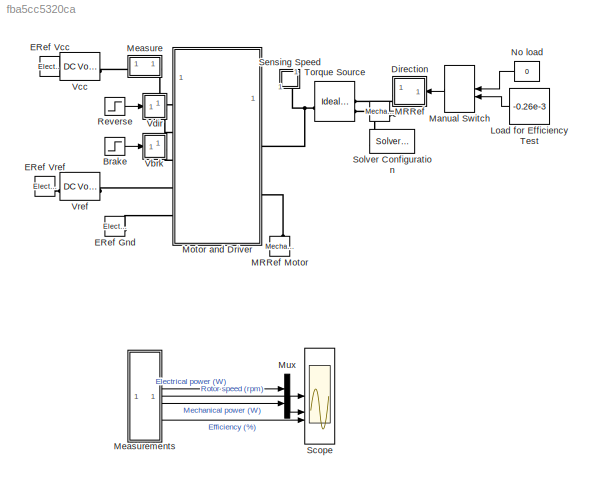
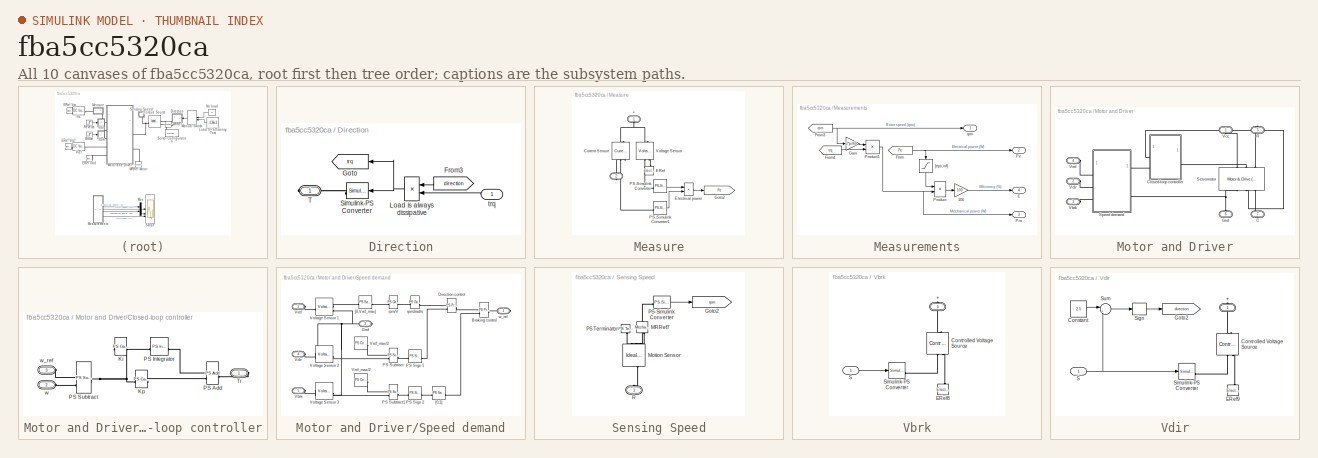
[diagram: thumbnail index - all 10 canvases of the model, root first then tree order]
MODEL slx_fba5cc5320ca
KIND model
CONFIG AbsTol = auto
CONFIG EnableMultiTasking = on
CONFIG FixedStep = 1e-3
CONFIG MaxStep = auto
CONFIG MinStep = auto
CONFIG RelTol = 1e-3
CONFIG SampleTimeConstraint = Unconstrained
CONFIG SolverName = VariableStepAuto
CONFIG StartTime = 0.0
CONFIG StopFcn = ee_addSimlogTimeStamp(bdroot)
CONFIG StopTime = 3
BLOCK [Step] Brake
  After = 5
  SampleTime = 0
  Time = 2
BLOCK [SubSystem] Direction
  NameLocation = top
BLOCK [From] Direction/From3
  GotoTag = direction
  TagVisibility = global
BLOCK [Goto] Direction/Goto
  GotoTag = trq
  NameLocation = top
  TagVisibility = global
BLOCK [Product] Direction/Load is always dissipative
  InputSameDT = on
  OutDataTypeStr = Inherit: Same as first input
  SaturateOnIntegerOverflow = on
BLOCK [Reference] Direction/Simulink-PS Converter  REF=nesl_utility/Simulink-PS
Converter
  NameLocation = top
  SourceBlock = nesl_utility/Simulink-PS\nConverter
  SourceType = Simulink-PS\nConverter
BLOCK [PMIOPort] Direction/T
  Side = Right
BLOCK [Inport] Direction/trq
BLOCK [Reference] ERef Gnd  REF=fl_lib/Electrical/Electrical Elements/Electrical Reference
  SourceBlock = fl_lib/Electrical/Electrical Elements/Electrical Reference
  SourceType = Electrical Reference
BLOCK [Reference] ERef Vcc  REF=fl_lib/Electrical/Electrical Elements/Electrical Reference
  SourceBlock = fl_lib/Electrical/Electrical Elements/Electrical Reference
  SourceType = Electrical Reference
BLOCK [Reference] ERef Vref  REF=fl_lib/Electrical/Electrical Elements/Electrical Reference
  SourceBlock = fl_lib/Electrical/Electrical Elements/Electrical Reference
  SourceType = Electrical Reference
BLOCK [Constant] Load for Efficiency Test
  Value = -0.26e-3
BLOCK [Reference] MRRef  REF=fl_lib/Mechanical/Rotational Elements/Mechanical
Rotational Reference
  SourceBlock = fl_lib/Mechanical/Rotational Elements/Mechanical\nRotational Reference
  SourceType = Mechanical\nRotational Reference
BLOCK [Reference] MRRef Motor  REF=fl_lib/Mechanical/Rotational Elements/Mechanical
Rotational Reference
  NameLocation = right
  SourceBlock = fl_lib/Mechanical/Rotational Elements/Mechanical\nRotational Reference
  SourceType = Mechanical\nRotational Reference
BLOCK [ManualSwitch] Manual Switch
  CurrentSetting = 0
BLOCK [SubSystem] Measure
BLOCK [PMIOPort] Measure/+
  NameLocation = right
  Side = Left
BLOCK [PMIOPort] Measure/-
  NameLocation = left
  Port = 2
  Side = Right
BLOCK [Reference] Measure/Current Sensor  REF=fl_lib/Electrical/Electrical Sensors/Current Sensor
  NameLocation = left
  SourceBlock = fl_lib/Electrical/Electrical Sensors/Current Sensor
  SourceType = Current Sensor
BLOCK [Reference] Measure/ERef  REF=fl_lib/Electrical/Electrical Elements/Electrical Reference
  NameLocation = right
  SourceBlock = fl_lib/Electrical/Electrical Elements/Electrical Reference
  SourceType = Electrical Reference
BLOCK [Product] Measure/Electrical power
  InputSameDT = on
  OutDataTypeStr = Inherit: Same as first input
  SaturateOnIntegerOverflow = on
BLOCK [Goto] Measure/Goto2
  GotoTag = Pe
  TagVisibility = global
BLOCK [Reference] Measure/PS-Simulink Converter  REF=nesl_utility/PS-Simulink
Converter
  SourceBlock = nesl_utility/PS-Simulink\nConverter
  SourceType = PS-Simulink\nConverter
BLOCK [Reference] Measure/PS-Simulink Converter1  REF=nesl_utility/PS-Simulink
Converter
  SourceBlock = nesl_utility/PS-Simulink\nConverter
  SourceType = PS-Simulink\nConverter
BLOCK [Reference] Measure/Voltage Sensor  REF=fl_lib/Electrical/Electrical Sensors/Voltage Sensor
  NameLocation = right
  SourceBlock = fl_lib/Electrical/Electrical Sensors/Voltage Sensor
  SourceType = Voltage Sensor
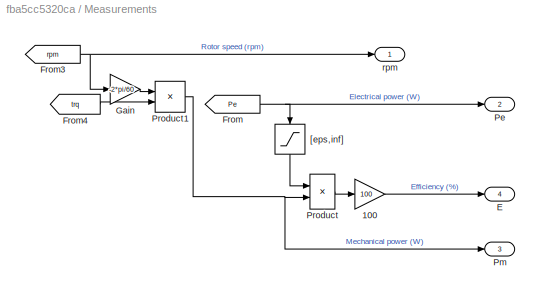
BLOCK [SubSystem] Measurements
BLOCK [Gain] Measurements/100
  Gain = 100
  OutDataTypeStr = Inherit: Same as input
  ParamDataTypeStr = Inherit: Same as input
  SaturateOnIntegerOverflow = on
BLOCK [Outport] Measurements/E
  Port = 4
  VectorParamsAs1DForOutWhenUnconnected = off
BLOCK [From] Measurements/From
  GotoTag = Pe
  TagVisibility = global
BLOCK [From] Measurements/From3
  GotoTag = rpm
  TagVisibility = global
BLOCK [From] Measurements/From4
  GotoTag = trq
  TagVisibility = global
BLOCK [Gain] Measurements/Gain
  Gain = -2*pi/60
BLOCK [Outport] Measurements/Pe
  Port = 2
  VectorParamsAs1DForOutWhenUnconnected = off
BLOCK [Outport] Measurements/Pm
  Port = 3
  VectorParamsAs1DForOutWhenUnconnected = off
BLOCK [Product] Measurements/Product
  InputSameDT = on
  Inputs = /*
  OutDataTypeStr = Inherit: Same as first input
  SaturateOnIntegerOverflow = on
BLOCK [Product] Measurements/Product1
BLOCK [Saturate] Measurements/[eps,inf]
  LowerLimit = 1e-3
  NameLocation = left
  UpperLimit = inf
BLOCK [Outport] Measurements/rpm
  VectorParamsAs1DForOutWhenUnconnected = off
BLOCK [SubSystem] Motor and Driver
  Tag = PublishSubsystem
BLOCK [PMIOPort] Motor and Driver/C
  NameLocation = right
  Port = 7
  Side = Right
BLOCK [SubSystem] Motor and Driver/Closed-loop controller
BLOCK [Reference] Motor and Driver/Closed-loop controller/Ki  REF=fl_ps_legacy_lib/Legacy Physical
Signals/Functions/PS Gain
  SourceBlock = fl_ps_legacy_lib/Legacy Physical\nSignals/Functions/PS Gain
  SourceType = PS Gain
BLOCK [Reference] Motor and Driver/Closed-loop controller/Kp  REF=fl_ps_legacy_lib/Legacy Physical
Signals/Functions/PS Gain
  SourceBlock = fl_ps_legacy_lib/Legacy Physical\nSignals/Functions/PS Gain
  SourceType = PS Gain
BLOCK [Reference] Motor and Driver/Closed-loop controller/PS Add  REF=fl_ps_legacy_lib/Legacy Physical
Signals/Functions/PS Add
  SourceBlock = fl_ps_legacy_lib/Legacy Physical\nSignals/Functions/PS Add
  SourceType = PS Add
BLOCK [Reference] Motor and Driver/Closed-loop controller/PS Integrator  REF=fl_ps_legacy_lib/Legacy Physical
Signals/Linear Operators/PS Integrator
  SourceBlock = fl_ps_legacy_lib/Legacy Physical\nSignals/Linear Operators/PS Integrator
  SourceType = PS Integrator
BLOCK [Reference] Motor and Driver/Closed-loop controller/PS Subtract  REF=fl_ps_legacy_lib/Legacy Physical
Signals/Functions/PS Subtract
  SourceBlock = fl_ps_legacy_lib/Legacy Physical\nSignals/Functions/PS Subtract
  SourceType = PS Subtract
BLOCK [PMIOPort] Motor and Driver/Closed-loop controller/Tr
  Side = Right
BLOCK [PMIOPort] Motor and Driver/Closed-loop controller/w
  Port = 2
  Side = Left
BLOCK [PMIOPort] Motor and Driver/Closed-loop controller/w_ref
  NameLocation = top
  Port = 3
  Side = Left
BLOCK [PMIOPort] Motor and Driver/Gnd
  NameLocation = left
  Port = 6
  Side = Left
BLOCK [PMIOPort] Motor and Driver/R
  NameLocation = right
  Port = 5
  Side = Right
BLOCK [Reference] Motor and Driver/Servomotor  REF=ee_lib/Electromechanical/Motor & Drive
(System Level)
  NameLocation = left
  SourceBlock = ee_lib/Electromechanical/Motor & Drive\n(System Level)
  SourceType = Motor & Drive\n(System Level)
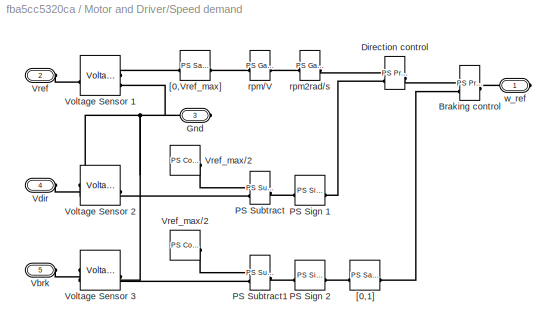
BLOCK [SubSystem] Motor and Driver/Speed demand
BLOCK [Reference] Motor and Driver/Speed demand/ Vref_max//2   REF=fl_lib/Physical Signals/Sources/PS Constant
  SourceBlock = fl_lib/Physical Signals/Sources/PS Constant
  SourceType = PS Constant
BLOCK [Reference] Motor and Driver/Speed demand/Braking control  REF=fl_ps_legacy_lib/Legacy Physical
Signals/Functions/PS Product
  SourceBlock = fl_ps_legacy_lib/Legacy Physical\nSignals/Functions/PS Product
  SourceType = PS Product
BLOCK [Reference] Motor and Driver/Speed demand/Direction control  REF=fl_ps_legacy_lib/Legacy Physical
Signals/Functions/PS Product
  SourceBlock = fl_ps_legacy_lib/Legacy Physical\nSignals/Functions/PS Product
  SourceType = PS Product
BLOCK [PMIOPort] Motor and Driver/Speed demand/Gnd
  Port = 3
  Side = Right
BLOCK [Reference] Motor and Driver/Speed demand/PS Sign 1  REF=fl_ps_legacy_lib/Legacy Physical
Signals/Nonlinear Operators/PS Sign
  SourceBlock = fl_ps_legacy_lib/Legacy Physical\nSignals/Nonlinear Operators/PS Sign
  SourceType = PS Sign
BLOCK [Reference] Motor and Driver/Speed demand/PS Sign 2  REF=fl_ps_legacy_lib/Legacy Physical
Signals/Nonlinear Operators/PS Sign
  SourceBlock = fl_ps_legacy_lib/Legacy Physical\nSignals/Nonlinear Operators/PS Sign
  SourceType = PS Sign
BLOCK [Reference] Motor and Driver/Speed demand/PS Subtract  REF=fl_ps_legacy_lib/Legacy Physical
Signals/Functions/PS Subtract
  SourceBlock = fl_ps_legacy_lib/Legacy Physical\nSignals/Functions/PS Subtract
  SourceType = PS Subtract
BLOCK [Reference] Motor and Driver/Speed demand/PS Subtract1  REF=fl_ps_legacy_lib/Legacy Physical
Signals/Functions/PS Subtract
  SourceBlock = fl_ps_legacy_lib/Legacy Physical\nSignals/Functions/PS Subtract
  SourceType = PS Subtract
BLOCK [PMIOPort] Motor and Driver/Speed demand/Vbrk
  Port = 5
  Side = Left
BLOCK [PMIOPort] Motor and Driver/Speed demand/Vdir
  Port = 4
  Side = Left
BLOCK [Reference] Motor and Driver/Speed demand/Voltage Sensor 1  REF=fl_lib/Electrical/Electrical Sensors/Voltage Sensor
  SourceBlock = fl_lib/Electrical/Electrical Sensors/Voltage Sensor
  SourceType = Voltage Sensor
BLOCK [Reference] Motor and Driver/Speed demand/Voltage Sensor 2  REF=fl_lib/Electrical/Electrical Sensors/Voltage Sensor
  SourceBlock = fl_lib/Electrical/Electrical Sensors/Voltage Sensor
  SourceType = Voltage Sensor
BLOCK [Reference] Motor and Driver/Speed demand/Voltage Sensor 3  REF=fl_lib/Electrical/Electrical Sensors/Voltage Sensor
  SourceBlock = fl_lib/Electrical/Electrical Sensors/Voltage Sensor
  SourceType = Voltage Sensor
BLOCK [PMIOPort] Motor and Driver/Speed demand/Vref
  Port = 2
  Side = Left
BLOCK [Reference] Motor and Driver/Speed demand/Vref_max//2  REF=fl_lib/Physical Signals/Sources/PS Constant
  SourceBlock = fl_lib/Physical Signals/Sources/PS Constant
  SourceType = PS Constant
BLOCK [Reference] Motor and Driver/Speed demand/[0,1]  REF=fl_ps_legacy_lib/Legacy Physical
Signals/Nonlinear Operators/PS Saturation
  SourceBlock = fl_ps_legacy_lib/Legacy Physical\nSignals/Nonlinear Operators/PS Saturation
  SourceType = PS Saturation
BLOCK [Reference] Motor and Driver/Speed demand/[0,Vref_max]  REF=fl_ps_legacy_lib/Legacy Physical
Signals/Nonlinear Operators/PS Saturation
  SourceBlock = fl_ps_legacy_lib/Legacy Physical\nSignals/Nonlinear Operators/PS Saturation
  SourceType = PS Saturation
BLOCK [Reference] Motor and Driver/Speed demand/rpm//V  REF=fl_ps_legacy_lib/Legacy Physical
Signals/Functions/PS Gain
  SourceBlock = fl_ps_legacy_lib/Legacy Physical\nSignals/Functions/PS Gain
  SourceType = PS Gain
BLOCK [Reference] Motor and Driver/Speed demand/rpm2rad//s  REF=fl_ps_legacy_lib/Legacy Physical
Signals/Functions/PS Gain
  SourceBlock = fl_ps_legacy_lib/Legacy Physical\nSignals/Functions/PS Gain
  SourceType = PS Gain
BLOCK [PMIOPort] Motor and Driver/Speed demand/w_ref
  Side = Right
BLOCK [PMIOPort] Motor and Driver/Vbrk
  Port = 3
  Side = Left
BLOCK [PMIOPort] Motor and Driver/Vcc
  NameLocation = left
  Side = Left
BLOCK [PMIOPort] Motor and Driver/Vdir
  Port = 2
  Side = Left
BLOCK [PMIOPort] Motor and Driver/Vref
  Port = 4
  Side = Left
BLOCK [Mux] Mux
  DisplayOption = bar
  Inputs = 2
BLOCK [Constant] No load
  NameLocation = top
  Value = 0
BLOCK [Step] Reverse
  After = 5
  SampleTime = 0
BLOCK [Scope] Scope
  Floating = off
  NumInputPorts = 3
  ScopeSpecificationString = Simulink.scopes.TimeScopeBlockCfg('CurrentConfiguration', extmgr.ConfigurationSet(extmgr.Configuration('Core','General UI',true),extmgr.Configuration('Core','Source UI',true),extmgr.Configuration('Sources','WiredSimulink',true,'DataLoggingVariableName','ScopeData2','DataLoggingSaveFormat','StructureWithTime','DataLoggingDecimation','1','DataLoggingDecimateData',true),extmgr.Configuration('Visuals'...<+2957ch>
BLOCK [SubSystem] Sensing Speed
  NameLocation = right
BLOCK [Goto] Sensing Speed/Goto2
  GotoTag = rpm
  TagVisibility = global
BLOCK [Reference] Sensing Speed/MRRef7  REF=fl_lib/Mechanical/Rotational Elements/Mechanical
Rotational Reference
  NameLocation = left
  SourceBlock = fl_lib/Mechanical/Rotational Elements/Mechanical\nRotational Reference
  SourceType = Mechanical\nRotational Reference
BLOCK [Reference] Sensing Speed/Motion Sensor  REF=fl_lib/Mechanical/Mechanical Sensors/Ideal Rotational
Motion Sensor
  NameLocation = left
  SourceBlock = fl_lib/Mechanical/Mechanical Sensors/Ideal Rotational\nMotion Sensor
  SourceType = Ideal Rotational\nMotion Sensor
BLOCK [Reference] Sensing Speed/PS Terminator  REF=fl_lib/Physical Signals/Sinks/PS Terminator
  NameLocation = right
  SourceBlock = fl_lib/Physical Signals/Sinks/PS Terminator
  SourceType = PS Terminator
BLOCK [Reference] Sensing Speed/PS-Simulink Converter  REF=nesl_utility/PS-Simulink
Converter
  SourceBlock = nesl_utility/PS-Simulink\nConverter
  SourceType = PS-Simulink\nConverter
BLOCK [PMIOPort] Sensing Speed/R
  NameLocation = right
  Side = Left
BLOCK [Reference] Solver Configuration  REF=nesl_utility/Solver
Configuration
  NameLocation = top
  SourceBlock = nesl_utility/Solver\nConfiguration
  SourceType = Solver\nConfiguration
BLOCK [Reference] Torque Source  REF=fl_lib/Mechanical/Mechanical Sources/Ideal Torque Source
  NameLocation = top
  SourceBlock = fl_lib/Mechanical/Mechanical Sources/Ideal Torque Source
  SourceType = Ideal Torque Source
BLOCK [SubSystem] Vbrk
  CopyFcn = set_param(gcb,'LinkStatus','none')
BLOCK [PMIOPort] Vbrk/+
  NameLocation = right
  Side = Right
BLOCK [Reference] Vbrk/Controlled Voltage Source  REF=fl_lib/Electrical/Electrical Sources/Controlled Voltage
Source
  NameLocation = right
  SourceBlock = fl_lib/Electrical/Electrical Sources/Controlled Voltage\nSource
  SourceType = Controlled Voltage\nSource
BLOCK [Reference] Vbrk/ERef8  REF=fl_lib/Electrical/Electrical Elements/Electrical Reference
  NameLocation = right
  SourceBlock = fl_lib/Electrical/Electrical Elements/Electrical Reference
  SourceType = Electrical Reference
BLOCK [Inport] Vbrk/S
BLOCK [Reference] Vbrk/Simulink-PS Converter  REF=nesl_utility/Simulink-PS
Converter
  SourceBlock = nesl_utility/Simulink-PS\nConverter
  SourceType = Simulink-PS\nConverter
BLOCK [Reference] Vcc  REF=fl_lib/Electrical/Electrical Sources/DC Voltage Source
  AttributesFormatString = %<v0> %<v0_unit>
  SourceBlock = fl_lib/Electrical/Electrical Sources/DC Voltage Source
  SourceType = DC Voltage Source
BLOCK [SubSystem] Vdir
  CopyFcn = set_param(gcb,'LinkStatus','none')
BLOCK [PMIOPort] Vdir/+
  NameLocation = right
  Side = Right
BLOCK [Constant] Vdir/Constant
  Value = 2.5
BLOCK [Reference] Vdir/Controlled Voltage Source  REF=fl_lib/Electrical/Electrical Sources/Controlled Voltage
Source
  NameLocation = right
  SourceBlock = fl_lib/Electrical/Electrical Sources/Controlled Voltage\nSource
  SourceType = Controlled Voltage\nSource
BLOCK [Reference] Vdir/ERef9  REF=fl_lib/Electrical/Electrical Elements/Electrical Reference
  NameLocation = right
  SourceBlock = fl_lib/Electrical/Electrical Elements/Electrical Reference
  SourceType = Electrical Reference
BLOCK [Goto] Vdir/Goto2
  GotoTag = direction
  TagVisibility = global
BLOCK [Inport] Vdir/S
BLOCK [Signum] Vdir/Sign
BLOCK [Reference] Vdir/Simulink-PS Converter  REF=nesl_utility/Simulink-PS
Converter
  SourceBlock = nesl_utility/Simulink-PS\nConverter
  SourceType = Simulink-PS\nConverter
BLOCK [Sum] Vdir/Sum
  InputSameDT = on
  Inputs = |+-
  OutDataTypeStr = Inherit: Same as first input
  SaturateOnIntegerOverflow = on
BLOCK [Reference] Vref  REF=fl_lib/Electrical/Electrical Sources/DC Voltage Source
  AttributesFormatString = %<v0> %<v0_unit>
  SourceBlock = fl_lib/Electrical/Electrical Sources/DC Voltage Source
  SourceType = DC Voltage Source
LINE Brake:1 -> Vbrk:1
LINE Direction/From3:1 -> Direction/Load is always dissipative:1
NET Direction/Load is always dissipative:1 -> Direction/Goto:1, Direction/Simulink-PS Converter:1
LINE Direction/trq:1 -> Direction/Load is always dissipative:2
LINE Load for Efficiency Test:1 -> Manual Switch:2
LINE Manual Switch:1 -> Direction:1
LINE Measure/Electrical power:1 -> Measure/Goto2:1
LINE Measure/PS-Simulink Converter1:1 -> Measure/Electrical power:2
LINE Measure/PS-Simulink Converter:1 -> Measure/Electrical power:1
LINE Measurements/100:1 -> Measurements/E:1
NET Measurements/From3:1 -> Measurements/Gain:1, Measurements/rpm:1
LINE Measurements/From4:1 -> Measurements/Product1:2
NET Measurements/From:1 -> Measurements/Pe:1, Measurements/[eps,inf]:1
LINE Measurements/Gain:1 -> Measurements/Product1:1
NET Measurements/Product1:1 -> Measurements/Pm:1, Measurements/Product:2
LINE Measurements/Product:1 -> Measurements/100:1
LINE Measurements/[eps,inf]:1 -> Measurements/Product:1
LINE Measurements:1 -> Scope:1
LINE Measurements:2 -> Mux:1
LINE Measurements:3 -> Mux:2
LINE Measurements:4 -> Scope:3
LINE Mux:1 -> Scope:2
LINE No load:1 -> Manual Switch:1
LINE Reverse:1 -> Vdir:1
LINE Sensing Speed/PS-Simulink Converter:1 -> Sensing Speed/Goto2:1
LINE Vbrk/S:1 -> Vbrk/Simulink-PS Converter:1
LINE Vdir/Constant:1 -> Vdir/Sum:1
NET Vdir/S:1 -> Vdir/Simulink-PS Converter:1, Vdir/Sum:2
LINE Vdir/Sign:1 -> Vdir/Goto2:1
LINE Vdir/Sum:1 -> Vdir/Sign:1
PLINE Direction/Simulink-PS Converter:RConn1 -- Direction/T:RConn1
PLINE Direction:RConn1 -- Torque Source:RConn1
PLINE ERef Gnd:LConn1 -- Motor and Driver:LConn5
PLINE ERef Vcc:LConn1 -- Vcc:RConn1
PLINE ERef Vref:LConn1 -- Vref:RConn1
PLINE MRRef Motor:LConn1 -- Motor and Driver:RConn2
PNET net1: MRRef:LConn1 -- Solver Configuration:RConn1 -- Torque Source:RConn2
PNET net2: Measure/+:RConn1 -- Measure/Current Sensor:LConn1 -- Measure/Voltage Sensor:LConn1
PLINE Measure/-:RConn1 -- Measure/Current Sensor:RConn2
PLINE Measure/Current Sensor:RConn1 -- Measure/PS-Simulink Converter1:LConn1
PLINE Measure/ERef:LConn1 -- Measure/Voltage Sensor:RConn2
PLINE Measure/PS-Simulink Converter:LConn1 -- Measure/Voltage Sensor:RConn1
PLINE Measure:LConn1 -- Vcc:LConn1
PLINE Measure:RConn1 -- Motor and Driver:LConn1
PLINE Motor and Driver/C:RConn1 -- Motor and Driver/Servomotor:RConn3
PNET net3: Motor and Driver/Closed-loop controller/Ki:LConn1 -- Motor and Driver/Closed-loop controller/Kp:LConn1 -- Motor and Driver/Closed-loop controller/PS Subtract:RConn1
PLINE Motor and Driver/Closed-loop controller/Ki:RConn1 -- Motor and Driver/Closed-loop controller/PS Integrator:LConn1
PLINE Motor and Driver/Closed-loop controller/Kp:RConn1 -- Motor and Driver/Closed-loop controller/PS Add:LConn2
PLINE Motor and Driver/Closed-loop controller/PS Add:LConn1 -- Motor and Driver/Closed-loop controller/PS Integrator:RConn1
PLINE Motor and Driver/Closed-loop controller/PS Add:RConn1 -- Motor and Driver/Closed-loop controller/Tr:RConn1
PLINE Motor and Driver/Closed-loop controller/PS Subtract:LConn1 -- Motor and Driver/Closed-loop controller/w_ref:RConn1
PLINE Motor and Driver/Closed-loop controller/PS Subtract:LConn2 -- Motor and Driver/Closed-loop controller/w:RConn1
PLINE Motor and Driver/Closed-loop controller:LConn1 -- Motor and Driver/Servomotor:RConn2
PLINE Motor and Driver/Closed-loop controller:LConn2 -- Motor and Driver/Speed demand:RConn1
PLINE Motor and Driver/Closed-loop controller:RConn1 -- Motor and Driver/Servomotor:LConn2
PNET net4: Motor and Driver/Gnd:RConn1 -- Motor and Driver/Servomotor:RConn1 -- Motor and Driver/Speed demand:RConn2
PLINE Motor and Driver/R:RConn1 -- Motor and Driver/Servomotor:LConn3
PLINE Motor and Driver/Servomotor:LConn1 -- Motor and Driver/Vcc:RConn1
PLINE Motor and Driver/Speed demand/ Vref_max//2 :RConn1 -- Motor and Driver/Speed demand/PS Subtract1:LConn1
PLINE Motor and Driver/Speed demand/Braking control:LConn1 -- Motor and Driver/Speed demand/Direction control:RConn1
PLINE Motor and Driver/Speed demand/Braking control:LConn2 -- Motor and Driver/Speed demand/[0,1]:RConn1
PLINE Motor and Driver/Speed demand/Braking control:RConn1 -- Motor and Driver/Speed demand/w_ref:RConn1
PLINE Motor and Driver/Speed demand/Direction control:LConn1 -- Motor and Driver/Speed demand/rpm2rad//s:RConn1
PLINE Motor and Driver/Speed demand/Direction control:LConn2 -- Motor and Driver/Speed demand/PS Sign 1:RConn1
PNET net5: Motor and Driver/Speed demand/Gnd:RConn1 -- Motor and Driver/Speed demand/Voltage Sensor 1:RConn2 -- Motor and Driver/Speed demand/Voltage Sensor 2:RConn2 -- Motor and Driver/Speed demand/Voltage Sensor 3:RConn2
PLINE Motor and Driver/Speed demand/PS Sign 1:LConn1 -- Motor and Driver/Speed demand/PS Subtract:RConn1
PLINE Motor and Driver/Speed demand/PS Sign 2:LConn1 -- Motor and Driver/Speed demand/PS Subtract1:RConn1
PLINE Motor and Driver/Speed demand/PS Sign 2:RConn1 -- Motor and Driver/Speed demand/[0,1]:LConn1
PLINE Motor and Driver/Speed demand/PS Subtract1:LConn2 -- Motor and Driver/Speed demand/Voltage Sensor 3:RConn1
PLINE Motor and Driver/Speed demand/PS Subtract:LConn1 -- Motor and Driver/Speed demand/Vref_max//2:RConn1
PLINE Motor and Driver/Speed demand/PS Subtract:LConn2 -- Motor and Driver/Speed demand/Voltage Sensor 2:RConn1
PLINE Motor and Driver/Speed demand/Vbrk:RConn1 -- Motor and Driver/Speed demand/Voltage Sensor 3:LConn1
PLINE Motor and Driver/Speed demand/Vdir:RConn1 -- Motor and Driver/Speed demand/Voltage Sensor 2:LConn1
PLINE Motor and Driver/Speed demand/Voltage Sensor 1:LConn1 -- Motor and Driver/Speed demand/Vref:RConn1
PLINE Motor and Driver/Speed demand/Voltage Sensor 1:RConn1 -- Motor and Driver/Speed demand/[0,Vref_max]:LConn1
PLINE Motor and Driver/Speed demand/[0,Vref_max]:RConn1 -- Motor and Driver/Speed demand/rpm//V:LConn1
PLINE Motor and Driver/Speed demand/rpm//V:RConn1 -- Motor and Driver/Speed demand/rpm2rad//s:LConn1
PLINE Motor and Driver/Speed demand:LConn1 -- Motor and Driver/Vref:RConn1
PLINE Motor and Driver/Speed demand:LConn2 -- Motor and Driver/Vdir:RConn1
PLINE Motor and Driver/Speed demand:LConn3 -- Motor and Driver/Vbrk:RConn1
PLINE Motor and Driver:LConn2 -- Vdir:RConn1
PLINE Motor and Driver:LConn3 -- Vbrk:RConn1
PLINE Motor and Driver:LConn4 -- Vref:LConn1
PNET net6: Motor and Driver:RConn1 -- Sensing Speed:LConn1 -- Torque Source:LConn1
PLINE Sensing Speed/MRRef7:LConn1 -- Sensing Speed/Motion Sensor:RConn1
PLINE Sensing Speed/Motion Sensor:LConn1 -- Sensing Speed/R:RConn1
PLINE Sensing Speed/Motion Sensor:RConn2 -- Sensing Speed/PS-Simulink Converter:LConn1
PLINE Sensing Speed/Motion Sensor:RConn3 -- Sensing Speed/PS Terminator:LConn1
PLINE Vbrk/+:RConn1 -- Vbrk/Controlled Voltage Source:LConn1
PLINE Vbrk/Controlled Voltage Source:RConn1 -- Vbrk/Simulink-PS Converter:RConn1
PLINE Vbrk/Controlled Voltage Source:RConn2 -- Vbrk/ERef8:LConn1
PLINE Vdir/+:RConn1 -- Vdir/Controlled Voltage Source:LConn1
PLINE Vdir/Controlled Voltage Source:RConn1 -- Vdir/Simulink-PS Converter:RConn1
PLINE Vdir/Controlled Voltage Source:RConn2 -- Vdir/ERef9:LConn1
note: NET lines group one-source signal fan-out (src -> all destinations, sorted); 1:1 wires keep LINE; PNET lines group multi-terminal physical nets as a canonical sorted terminal list (undirected conserving connections); 2-terminal nets keep the pairwise PLINE form
